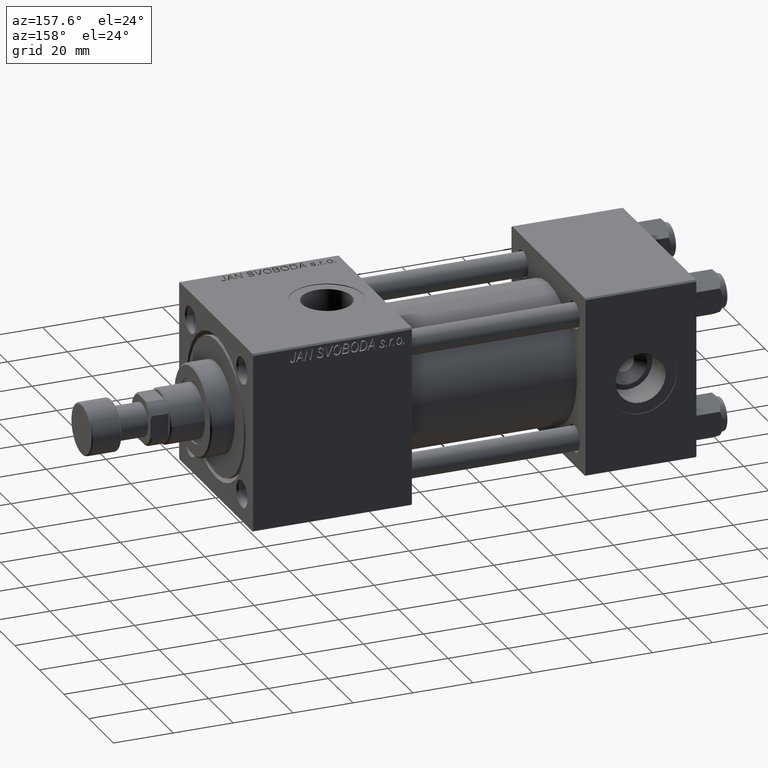
[diagram: clean part render]
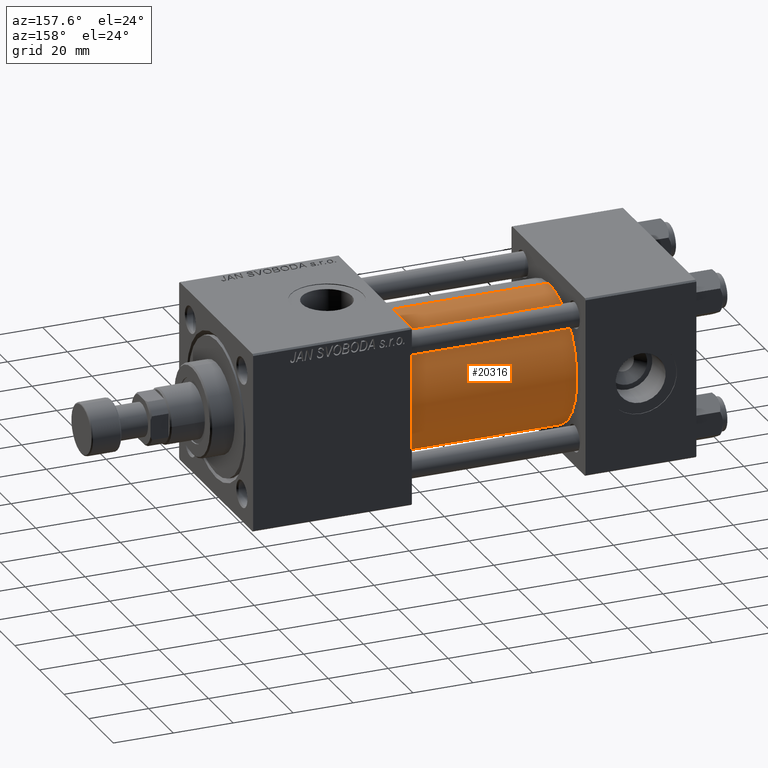
[diagram: same view with one face highlighted and labeled with its STEP entity id]
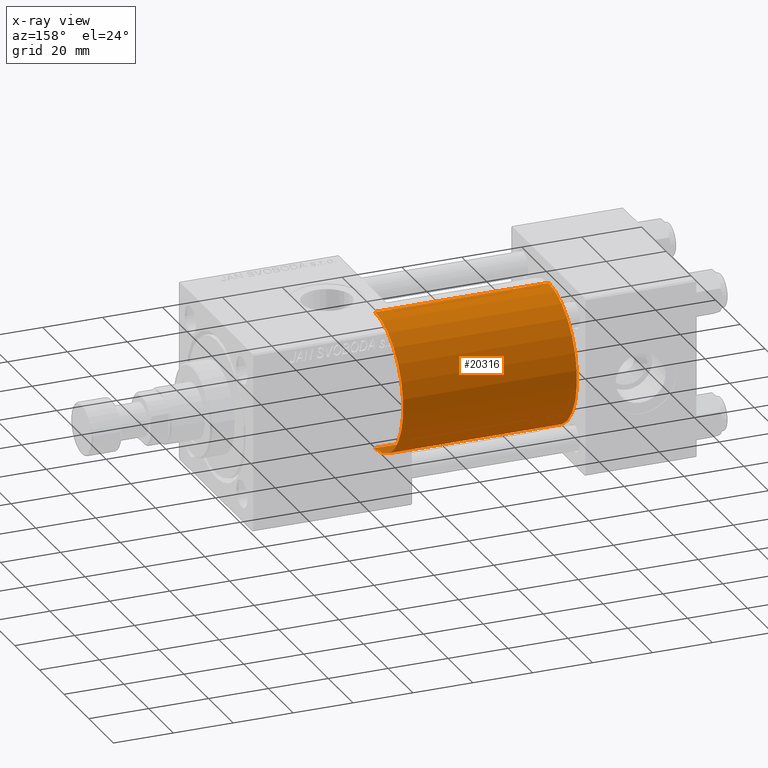
[diagram: x-ray of the same camera — body ghosted, the highlighted face saturated]
A machine part, auxiliary view. The second image highlights one B-rep face of the part: STEP entity #20316.
The next image is the same camera in x-ray: the body ghosted, the highlighted face saturated — about 0% of this face is hidden behind the body in this view.
In plain terms, the highlighted cylindrical surface (partial cylindrical patch) has radius 23 mm, axis along (-1, -0, -0).
Its self-contained STEP definition (entity closure, byte-faithful):
#1580 = EDGE_CURVE ( 'NONE', #5072, #26901, #38672, .T. ) ;
#2821 = CARTESIAN_POINT ( 'NONE',  ( 95.00000000000000000, 2.146024240737012665E-16, -23.00000000000000000 ) ) ;
#4454 = EDGE_CURVE ( 'NONE', #31206, #5072, #48397, .T. ) ;
#5072 = VERTEX_POINT ( 'NONE', #15023 ) ;
#7506 = DIRECTION ( 'NONE',  ( -1.000000000000000000, -0.000000000000000000, -0.000000000000000000 ) ) ;
#7930 = DIRECTION ( 'NONE',  ( -1.000000000000000000, -0.000000000000000000, -0.000000000000000000 ) ) ;
#14314 = CARTESIAN_POINT ( 'NONE',  ( 37.00000000000000000, -2.602085213965210642E-15, 0.000000000000000000 ) ) ;
#15023 = CARTESIAN_POINT ( 'NONE',  ( 37.00000000000000000, 2.146024240737012665E-16, -23.00000000000000000 ) ) ;
#15499 = CARTESIAN_POINT ( 'NONE',  ( 95.00000000000000000, -2.602085213965210642E-15, 0.000000000000000000 ) ) ;
#16216 = ORIENTED_EDGE ( 'NONE', *, *, #36002, .F. ) ;
#17569 = CARTESIAN_POINT ( 'NONE',  ( 37.00000000000000000, -2.602085213965210642E-15, 23.00000000000000000 ) ) ;
#20216 = VECTOR ( 'NONE', #21176, 1000.000000000000000 ) ;
#20316 = ADVANCED_FACE ( 'NONE', ( #35460 ), #51960, .T. ) ;
#21176 = DIRECTION ( 'NONE',  ( -1.000000000000000000, -0.000000000000000000, -0.000000000000000000 ) ) ;
#22088 = DIRECTION ( 'NONE',  ( 1.000000000000000000, 0.000000000000000000, 0.000000000000000000 ) ) ;
#23951 = EDGE_CURVE ( 'NONE', #39903, #26901, #29175, .T. ) ;
#25671 = EDGE_LOOP ( 'NONE', ( #16216, #50087, #41988, #39790 ) ) ;
#25941 = AXIS2_PLACEMENT_3D ( 'NONE', #47365, #22088, #51108 ) ;
#26901 = VERTEX_POINT ( 'NONE', #17569 ) ;
#28175 = CARTESIAN_POINT ( 'NONE',  ( 95.00000000000000000, 2.146024240737012665E-16, -23.00000000000000000 ) ) ;
#29175 = LINE ( 'NONE', #45395, #20216 ) ;
#31206 = VERTEX_POINT ( 'NONE', #2821 ) ;
#32542 = CARTESIAN_POINT ( 'NONE',  ( 95.00000000000000000, -2.602085213965210642E-15, 23.00000000000000000 ) ) ;
#35460 = FACE_OUTER_BOUND ( 'NONE', #25671, .T. ) ;
#36002 = EDGE_CURVE ( 'NONE', #31206, #39903, #39506, .T. ) ;
#38672 = CIRCLE ( 'NONE', #42916, 23.00000000000000000 ) ;
#39506 = CIRCLE ( 'NONE', #25941, 23.00000000000000000 ) ;
#39790 = ORIENTED_EDGE ( 'NONE', *, *, #23951, .F. ) ;
#39903 = VERTEX_POINT ( 'NONE', #32542 ) ;
#41450 = DIRECTION ( 'NONE',  ( 1.000000000000000000, -0.000000000000000000, 0.000000000000000000 ) ) ;
#41988 = ORIENTED_EDGE ( 'NONE', *, *, #1580, .T. ) ;
#42916 = AXIS2_PLACEMENT_3D ( 'NONE', #14314, #41450, #50499 ) ;
#45395 = CARTESIAN_POINT ( 'NONE',  ( 95.00000000000000000, -2.602085213965210642E-15, 23.00000000000000000 ) ) ;
#45554 = VECTOR ( 'NONE', #7930, 1000.000000000000000 ) ;
#47365 = CARTESIAN_POINT ( 'NONE',  ( 95.00000000000000000, -2.602085213965210642E-15, 0.000000000000000000 ) ) ;
#48397 = LINE ( 'NONE', #28175, #45554 ) ;
#48962 = AXIS2_PLACEMENT_3D ( 'NONE', #15499, #7506, #51699 ) ;
#50087 = ORIENTED_EDGE ( 'NONE', *, *, #4454, .T. ) ;
#50499 = DIRECTION ( 'NONE',  ( 0.000000000000000000, 0.000000000000000000, 1.000000000000000000 ) ) ;
#51108 = DIRECTION ( 'NONE',  ( 0.000000000000000000, 0.000000000000000000, -1.000000000000000000 ) ) ;
#51699 = DIRECTION ( 'NONE',  ( 0.000000000000000000, 0.000000000000000000, 1.000000000000000000 ) ) ;
#51960 = CYLINDRICAL_SURFACE ( 'NONE', #48962, 23.00000000000000000 ) ;